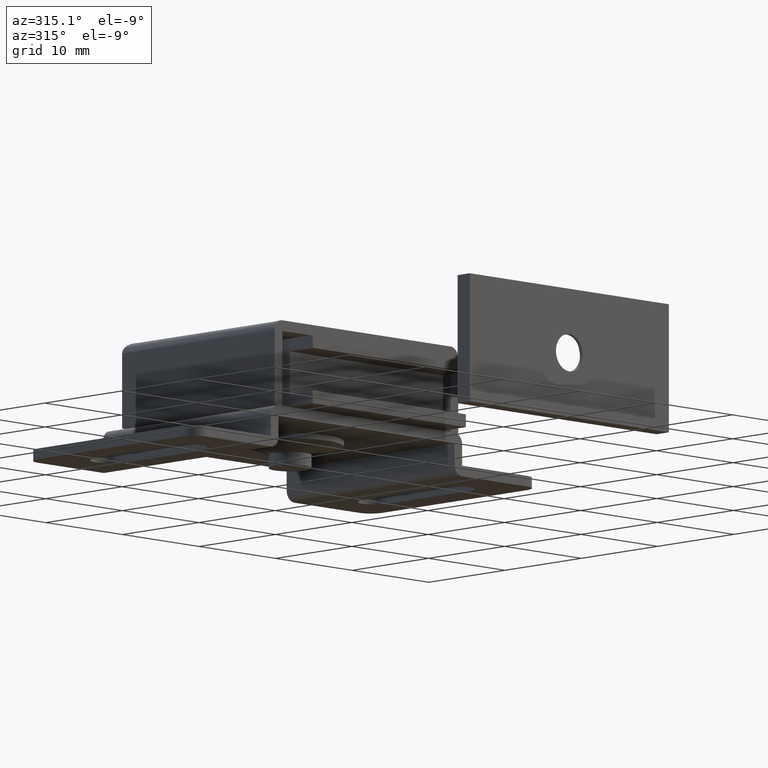
[diagram: clean part render]
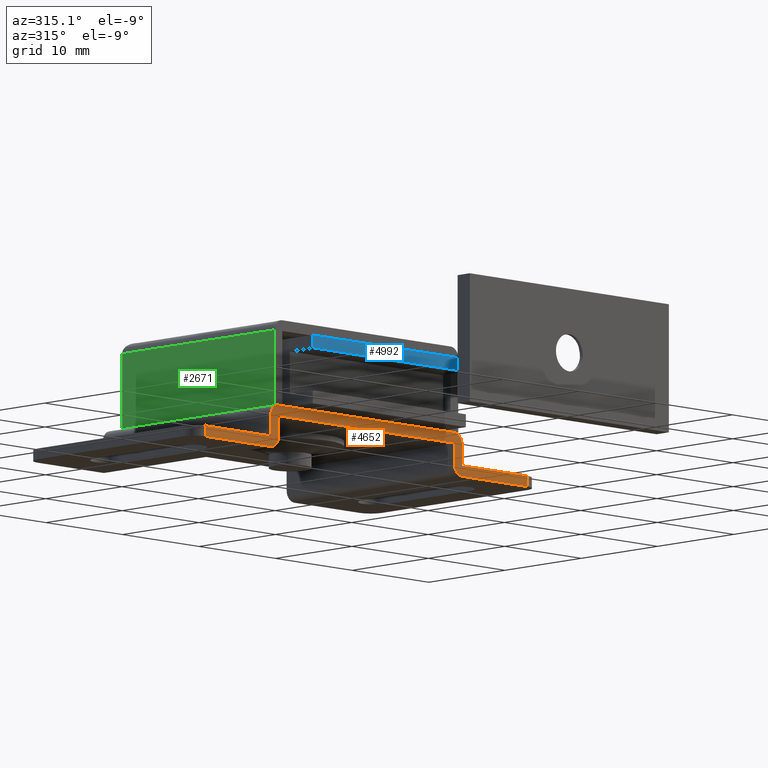
[diagram: same view with three faces highlighted in distinct colors, each labeled with its STEP entity id]
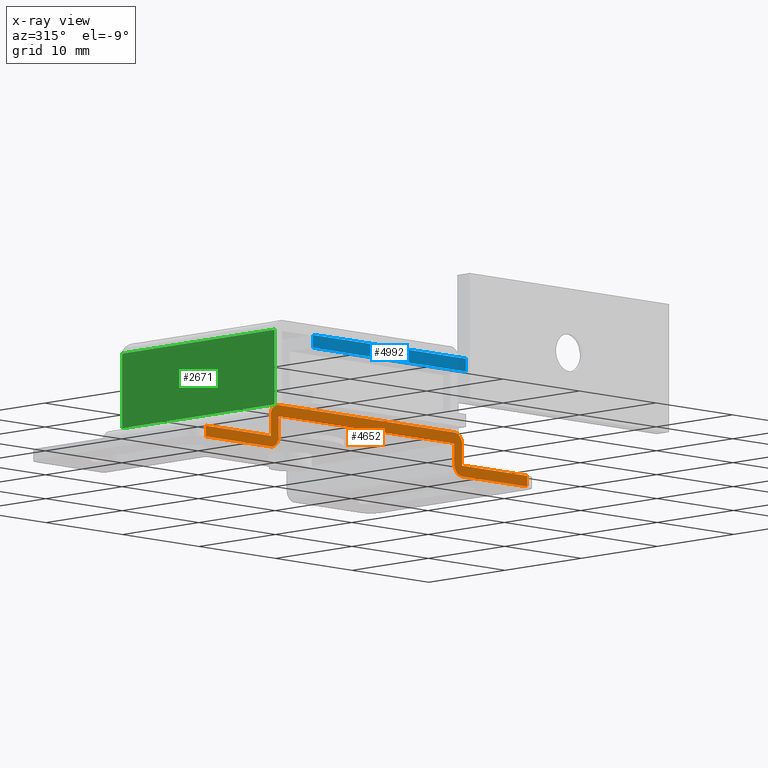
[diagram: x-ray of the same camera — body ghosted, the three highlighted faces saturated]
A machine part, auxiliary view with three faces highlighted in distinct colors.
The next image is the same camera in x-ray (body ghosted, the three faces saturated) — at least one of them is partly hidden behind the body in this view.
Their STEP definitions:

[orange] entity #4652 — the highlighted face is a freeform B-spline surface patch.
#3682=CARTESIAN_POINT('',(11.499997000000000,-22.0,4.0));
#3683=VERTEX_POINT('',#3682);
#3684=CARTESIAN_POINT('',(-11.500000000000000,-22.0,4.0));
#3685=VERTEX_POINT('',#3684);
#3686=CARTESIAN_POINT('',(11.499997000000000,-22.0,4.0));
#3687=CARTESIAN_POINT('',(-11.500000000000000,-22.0,4.0));
#3688=QUASI_UNIFORM_CURVE('',1,(#3686,#3687),.UNSPECIFIED.,.F.,.U.);
#3689=EDGE_CURVE('',#3683,#3685,#3688,.T.);
#3739=CARTESIAN_POINT('',(12.499997000000000,-22.0,3.0));
#3740=VERTEX_POINT('',#3739);
#3746=CARTESIAN_POINT('',(12.499997000000000,-22.0,0.999999999999972));
#3747=VERTEX_POINT('',#3746);
#3748=CARTESIAN_POINT('',(12.499997000000000,-22.0,0.999999999999972));
#3749=CARTESIAN_POINT('',(12.499997000000000,-22.0,3.0));
#3750=QUASI_UNIFORM_CURVE('',1,(#3748,#3749),.UNSPECIFIED.,.F.,.U.);
#3751=EDGE_CURVE('',#3747,#3740,#3750,.T.);
#3811=CARTESIAN_POINT('',(11.499997000000000,-22.0,0.999999999999971));
#3812=VERTEX_POINT('',#3811);
#3818=CARTESIAN_POINT('',(11.499997000000000,-22.0,3.0));
#3819=VERTEX_POINT('',#3818);
#3820=CARTESIAN_POINT('',(11.499997000000000,-22.0,3.0));
#3821=CARTESIAN_POINT('',(11.499997000000000,-22.0,0.999999999999971));
#3822=QUASI_UNIFORM_CURVE('',1,(#3820,#3821),.UNSPECIFIED.,.F.,.U.);
#3823=EDGE_CURVE('',#3819,#3812,#3822,.T.);
#3838=CARTESIAN_POINT('',(-11.500000000000000,-22.0,3.0));
#3839=VERTEX_POINT('',#3838);
#3840=CARTESIAN_POINT('',(-11.500000000000000,-22.0,3.0));
#3841=CARTESIAN_POINT('',(11.499997000000000,-22.0,3.0));
#3842=QUASI_UNIFORM_CURVE('',1,(#3840,#3841),.UNSPECIFIED.,.F.,.U.);
#3843=EDGE_CURVE('',#3839,#3819,#3842,.T.);
#3878=CARTESIAN_POINT('',(-11.500000000000000,-22.0,0.999999999999972));
#3879=VERTEX_POINT('',#3878);
#3880=CARTESIAN_POINT('',(-11.500000000000000,-22.0,0.999999999999972));
#3881=CARTESIAN_POINT('',(-11.500000000000000,-22.0,3.0));
#3882=QUASI_UNIFORM_CURVE('',1,(#3880,#3881),.UNSPECIFIED.,.F.,.U.);
#3883=EDGE_CURVE('',#3879,#3839,#3882,.T.);
#3928=CARTESIAN_POINT('',(20.999997000000000,-22.0,0.999999999999972));
#3929=VERTEX_POINT('',#3928);
#3930=CARTESIAN_POINT('',(20.999997000000000,-22.0,0.999999999999972));
#3931=CARTESIAN_POINT('',(12.499997000000000,-22.0,0.999999999999972));
#3932=QUASI_UNIFORM_CURVE('',1,(#3930,#3931),.UNSPECIFIED.,.F.,.U.);
#3933=EDGE_CURVE('',#3929,#3747,#3932,.T.);
#3985=CARTESIAN_POINT('',(20.999997000000000,-22.0,-2.842171E-014));
#3986=VERTEX_POINT('',#3985);
#4000=CARTESIAN_POINT('',(12.499997000000000,-22.0,-2.842171E-014));
#4001=VERTEX_POINT('',#4000);
#4002=CARTESIAN_POINT('',(12.499997000000000,-22.0,-2.842171E-014));
#4003=CARTESIAN_POINT('',(20.999997000000000,-22.0,-2.842171E-014));
#4004=QUASI_UNIFORM_CURVE('',1,(#4002,#4003),.UNSPECIFIED.,.F.,.U.);
#4005=EDGE_CURVE('',#4001,#3986,#4004,.T.);
#4026=CARTESIAN_POINT('',(-21.0,-22.0,-2.842171E-014));
#4027=VERTEX_POINT('',#4026);
#4028=CARTESIAN_POINT('',(-12.500000000000000,-22.0,-2.842171E-014));
#4029=VERTEX_POINT('',#4028);
#4030=CARTESIAN_POINT('',(-21.0,-22.0,-2.842171E-014));
#4031=CARTESIAN_POINT('',(-12.500000000000000,-22.0,-2.842171E-014));
#4032=QUASI_UNIFORM_CURVE('',1,(#4030,#4031),.UNSPECIFIED.,.F.,.U.);
#4033=EDGE_CURVE('',#4027,#4029,#4032,.T.);
#4164=CARTESIAN_POINT('',(20.999997000000000,-22.0,-2.842171E-014));
#4165=CARTESIAN_POINT('',(20.999997000000000,-22.0,0.999999999999972));
#4166=QUASI_UNIFORM_CURVE('',1,(#4164,#4165),.UNSPECIFIED.,.F.,.U.);
#4167=EDGE_CURVE('',#3986,#3929,#4166,.T.);
#4258=CARTESIAN_POINT('',(-21.0,-22.0,0.999999999999972));
#4259=VERTEX_POINT('',#4258);
#4279=CARTESIAN_POINT('',(-21.0,-22.0,0.999999999999972));
#4280=CARTESIAN_POINT('',(-21.0,-22.0,-2.842171E-014));
#4281=QUASI_UNIFORM_CURVE('',1,(#4279,#4280),.UNSPECIFIED.,.F.,.U.);
#4282=EDGE_CURVE('',#4259,#4027,#4281,.T.);
#4316=CARTESIAN_POINT('',(-12.500000000000000,-22.0,3.0));
#4317=VERTEX_POINT('',#4316);
#4323=CARTESIAN_POINT('',(-11.500000000000000,-22.0,4.0));
#4324=CARTESIAN_POINT('',(-12.500000000000000,-22.000000000000007,4.000000000000000));
#4325=CARTESIAN_POINT('',(-12.500000000000000,-22.0,3.0));
#4333=(BOUNDED_CURVE()B_SPLINE_CURVE(2,(#4323,#4324,#4325),.UNSPECIFIED.,.F.,.U.)CURVE()GEOMETRIC_REPRESENTATION_ITEM()QUASI_UNIFORM_CURVE()RATIONAL_B_SPLINE_CURVE((1.0,0.707106781186548,1.0))REPRESENTATION_ITEM(''));
#4334=EDGE_CURVE('',#3685,#4317,#4333,.T.);
#4368=CARTESIAN_POINT('',(12.499997000000000,-22.0,3.0));
#4369=CARTESIAN_POINT('',(12.499996999999999,-22.000000000000007,4.000000000000000));
#4370=CARTESIAN_POINT('',(11.499997000000000,-22.0,4.0));
#4378=(BOUNDED_CURVE()B_SPLINE_CURVE(2,(#4368,#4369,#4370),.UNSPECIFIED.,.F.,.U.)CURVE()GEOMETRIC_REPRESENTATION_ITEM()QUASI_UNIFORM_CURVE()RATIONAL_B_SPLINE_CURVE((1.0,0.707106781186548,1.0))REPRESENTATION_ITEM(''));
#4379=EDGE_CURVE('',#3740,#3683,#4378,.T.);
#4413=CARTESIAN_POINT('',(11.499997000000000,-22.0,0.999999999999971));
#4414=CARTESIAN_POINT('',(11.499997000000000,-22.000000000000007,-2.905662E-014));
#4415=CARTESIAN_POINT('',(12.499997000000000,-22.0,-2.905662E-014));
#4423=(BOUNDED_CURVE()B_SPLINE_CURVE(2,(#4413,#4414,#4415),.UNSPECIFIED.,.F.,.U.)CURVE()GEOMETRIC_REPRESENTATION_ITEM()QUASI_UNIFORM_CURVE()RATIONAL_B_SPLINE_CURVE((1.0,0.707106781186548,1.0))REPRESENTATION_ITEM(''));
#4424=EDGE_CURVE('',#3812,#4001,#4423,.T.);
#4458=CARTESIAN_POINT('',(-12.500000000000000,-22.0,-2.797242E-014));
#4459=CARTESIAN_POINT('',(-11.500000000000000,-22.000000000000007,-2.797242E-014));
#4460=CARTESIAN_POINT('',(-11.500000000000000,-22.0,0.999999999999972));
#4468=(BOUNDED_CURVE()B_SPLINE_CURVE(2,(#4458,#4459,#4460),.UNSPECIFIED.,.F.,.U.)CURVE()GEOMETRIC_REPRESENTATION_ITEM()QUASI_UNIFORM_CURVE()RATIONAL_B_SPLINE_CURVE((1.0,0.707106781186548,1.0))REPRESENTATION_ITEM(''));
#4469=EDGE_CURVE('',#4029,#3879,#4468,.T.);
#4619=CARTESIAN_POINT('',(-23.097899768745862,-22.0,4.199799992247224));
#4620=CARTESIAN_POINT('',(23.097897895273562,-22.0,4.199799992247224));
#4621=CARTESIAN_POINT('',(-23.097899768745851,-22.0,-0.199800099535614));
#4622=CARTESIAN_POINT('',(23.097897895273562,-22.0,-0.199800099535614));
#4623=B_SPLINE_SURFACE_WITH_KNOTS('',1,1,((#4619,#4621),(#4620,#4622)),.UNSPECIFIED.,.F.,.F.,.U.,(2,2),(2,2),(0.0,46.195797664019423),(0.0,4.399600091782839),.UNSPECIFIED.);
#4624=CARTESIAN_POINT('',(-12.500000000000000,-22.0,0.999999999999972));
#4625=VERTEX_POINT('',#4624);
#4626=CARTESIAN_POINT('',(-12.500000000000000,-22.0,0.999999999999972));
#4627=CARTESIAN_POINT('',(-21.0,-22.0,0.999999999999972));
#4628=QUASI_UNIFORM_CURVE('',1,(#4626,#4627),.UNSPECIFIED.,.F.,.U.);
#4629=EDGE_CURVE('',#4625,#4259,#4628,.T.);
#4630=ORIENTED_EDGE('',*,*,#4629,.T.);
#4631=ORIENTED_EDGE('',*,*,#4282,.T.);
#4632=ORIENTED_EDGE('',*,*,#4033,.T.);
#4633=ORIENTED_EDGE('',*,*,#4469,.T.);
#4634=ORIENTED_EDGE('',*,*,#3883,.T.);
#4635=ORIENTED_EDGE('',*,*,#3843,.T.);
#4636=ORIENTED_EDGE('',*,*,#3823,.T.);
#4637=ORIENTED_EDGE('',*,*,#4424,.T.);
#4638=ORIENTED_EDGE('',*,*,#4005,.T.);
#4639=ORIENTED_EDGE('',*,*,#4167,.T.);
#4640=ORIENTED_EDGE('',*,*,#3933,.T.);
#4641=ORIENTED_EDGE('',*,*,#3751,.T.);
#4642=ORIENTED_EDGE('',*,*,#4379,.T.);
#4643=ORIENTED_EDGE('',*,*,#3689,.T.);
#4644=ORIENTED_EDGE('',*,*,#4334,.T.);
#4645=CARTESIAN_POINT('',(-12.500000000000000,-22.0,3.0));
#4646=CARTESIAN_POINT('',(-12.500000000000000,-22.0,0.999999999999972));
#4647=QUASI_UNIFORM_CURVE('',1,(#4645,#4646),.UNSPECIFIED.,.F.,.U.);
#4648=EDGE_CURVE('',#4317,#4625,#4647,.T.);
#4649=ORIENTED_EDGE('',*,*,#4648,.T.);
#4650=EDGE_LOOP('',(#4630,#4631,#4632,#4633,#4634,#4635,#4636,#4637,#4638,#4639,#4640,#4641,#4642,#4643,#4644,#4649));
#4651=FACE_OUTER_BOUND('',#4650,.T.);
#4652=ADVANCED_FACE('',(#4651),#4623,.F.);

[blue] entity #4992 — the highlighted face is a freeform B-spline surface patch.
#4928=CARTESIAN_POINT('',(9.999997000000001,-25.0,9.199997000000000));
#4929=VERTEX_POINT('',#4928);
#4930=CARTESIAN_POINT('',(-10.0,-25.0,9.199997000000000));
#4931=VERTEX_POINT('',#4930);
#4932=CARTESIAN_POINT('',(9.999997000000001,-25.0,9.199997000000000));
#4933=CARTESIAN_POINT('',(-10.0,-25.0,9.199997000000000));
#4934=QUASI_UNIFORM_CURVE('',1,(#4932,#4933),.UNSPECIFIED.,.F.,.U.);
#4935=EDGE_CURVE('',#4929,#4931,#4934,.T.);
#4965=CARTESIAN_POINT('',(-10.998999811386129,-25.0,10.459933847824130));
#4966=CARTESIAN_POINT('',(10.998997347827849,-25.0,10.459933847824130));
#4967=CARTESIAN_POINT('',(-10.998999811386129,-25.0,9.140057119989402));
#4968=CARTESIAN_POINT('',(10.998997347827849,-25.0,9.140057119989402));
#4969=B_SPLINE_SURFACE_WITH_KNOTS('',1,1,((#4965,#4967),(#4966,#4968)),.UNSPECIFIED.,.F.,.F.,.U.,(2,2),(2,2),(0.0,21.997997159213970),(0.041708334948495,0.958291687403247),.UNSPECIFIED.);
#4970=CARTESIAN_POINT('',(-10.0,-25.0,10.399993999999960));
#4971=VERTEX_POINT('',#4970);
#4972=CARTESIAN_POINT('',(-10.0,-25.0,9.199997000000000));
#4973=CARTESIAN_POINT('',(-10.0,-25.0,10.399993999999960));
#4974=QUASI_UNIFORM_CURVE('',1,(#4972,#4973),.UNSPECIFIED.,.F.,.U.);
#4975=EDGE_CURVE('',#4931,#4971,#4974,.T.);
#4976=ORIENTED_EDGE('',*,*,#4975,.F.);
#4977=ORIENTED_EDGE('',*,*,#4935,.F.);
#4978=CARTESIAN_POINT('',(9.999997000000001,-25.0,10.399993999999960));
#4979=VERTEX_POINT('',#4978);
#4980=CARTESIAN_POINT('',(9.999997000000001,-25.0,10.399993999999960));
#4981=CARTESIAN_POINT('',(9.999997000000001,-25.0,9.199997000000000));
#4982=QUASI_UNIFORM_CURVE('',1,(#4980,#4981),.UNSPECIFIED.,.F.,.U.);
#4983=EDGE_CURVE('',#4979,#4929,#4982,.T.);
#4984=ORIENTED_EDGE('',*,*,#4983,.F.);
#4985=CARTESIAN_POINT('',(-10.0,-25.0,10.399993999999960));
#4986=CARTESIAN_POINT('',(9.999997000000001,-25.0,10.399993999999960));
#4987=QUASI_UNIFORM_CURVE('',1,(#4985,#4986),.UNSPECIFIED.,.F.,.U.);
#4988=EDGE_CURVE('',#4971,#4979,#4987,.T.);
#4989=ORIENTED_EDGE('',*,*,#4988,.F.);
#4990=EDGE_LOOP('',(#4976,#4977,#4984,#4989));
#4991=FACE_OUTER_BOUND('',#4990,.T.);
#4992=ADVANCED_FACE('',(#4991),#4969,.F.);

[green] entity #2671 — the highlighted face is a freeform B-spline surface patch.
#2527=CARTESIAN_POINT('',(-12.0,-22.0,11.0));
#2528=VERTEX_POINT('',#2527);
#2549=CARTESIAN_POINT('',(-12.0,-2.0,11.0));
#2550=VERTEX_POINT('',#2549);
#2564=CARTESIAN_POINT('',(-12.0,-22.0,11.0));
#2565=CARTESIAN_POINT('',(-12.0,-2.0,11.0));
#2566=QUASI_UNIFORM_CURVE('',1,(#2564,#2565),.UNSPECIFIED.,.F.,.U.);
#2567=EDGE_CURVE('',#2528,#2550,#2566,.T.);
#2644=CARTESIAN_POINT('',(-12.0,-22.998999961236120,11.349649986432640));
#2645=CARTESIAN_POINT('',(-12.0,-1.000999502322078,11.349649986432640));
#2646=CARTESIAN_POINT('',(-12.0,-22.998999961236120,3.650349825812728));
#2647=CARTESIAN_POINT('',(-12.0,-1.000999502322078,3.650349825812728));
#2648=B_SPLINE_SURFACE_WITH_KNOTS('',1,1,((#2644,#2646),(#2645,#2647)),.UNSPECIFIED.,.F.,.F.,.U.,(2,2),(2,2),(0.0,21.998000458914039),(0.0,7.699300160619914),.UNSPECIFIED.);
#2649=CARTESIAN_POINT('',(-12.0,-22.0,4.0));
#2650=VERTEX_POINT('',#2649);
#2651=CARTESIAN_POINT('',(-12.0,-22.0,4.0));
#2652=CARTESIAN_POINT('',(-12.0,-22.0,11.0));
#2653=QUASI_UNIFORM_CURVE('',1,(#2651,#2652),.UNSPECIFIED.,.F.,.U.);
#2654=EDGE_CURVE('',#2650,#2528,#2653,.T.);
#2655=ORIENTED_EDGE('',*,*,#2654,.T.);
#2656=ORIENTED_EDGE('',*,*,#2567,.T.);
#2657=CARTESIAN_POINT('',(-12.0,-2.0,4.0));
#2658=VERTEX_POINT('',#2657);
#2659=CARTESIAN_POINT('',(-12.0,-2.0,11.0));
#2660=CARTESIAN_POINT('',(-12.0,-2.0,4.0));
#2661=QUASI_UNIFORM_CURVE('',1,(#2659,#2660),.UNSPECIFIED.,.F.,.U.);
#2662=EDGE_CURVE('',#2550,#2658,#2661,.T.);
#2663=ORIENTED_EDGE('',*,*,#2662,.T.);
#2664=CARTESIAN_POINT('',(-12.0,-2.0,4.0));
#2665=CARTESIAN_POINT('',(-12.0,-22.0,4.0));
#2666=QUASI_UNIFORM_CURVE('',1,(#2664,#2665),.UNSPECIFIED.,.F.,.U.);
#2667=EDGE_CURVE('',#2658,#2650,#2666,.T.);
#2668=ORIENTED_EDGE('',*,*,#2667,.T.);
#2669=EDGE_LOOP('',(#2655,#2656,#2663,#2668));
#2670=FACE_OUTER_BOUND('',#2669,.T.);
#2671=ADVANCED_FACE('',(#2670),#2648,.T.);